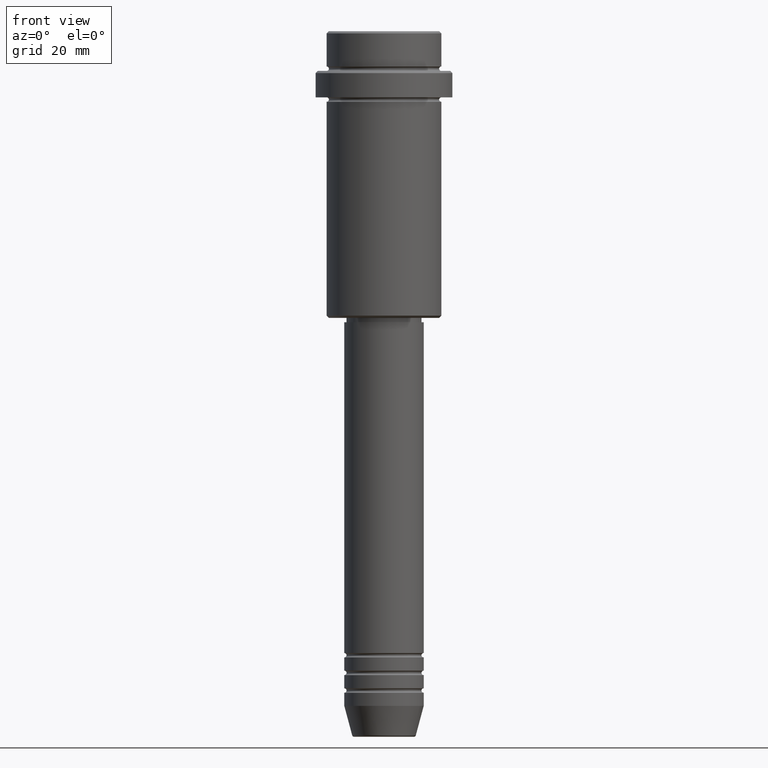
[diagram: clean part render]
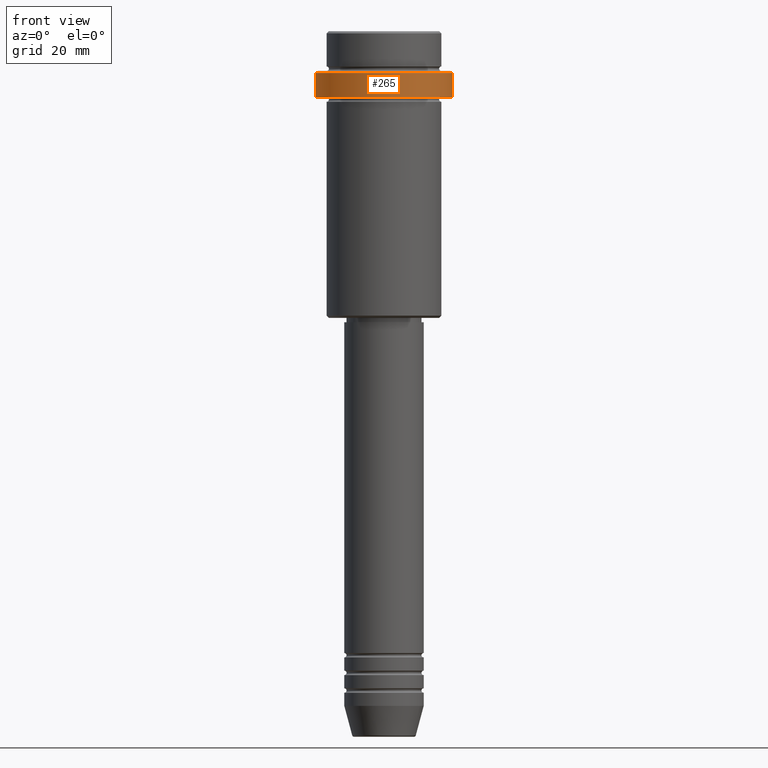
[diagram: same view with one face highlighted and labeled with its STEP entity id]
A machine part, front view. The second image highlights one B-rep face of the part: STEP entity #265.
In plain terms, the highlighted cylindrical surface (partial cylindrical patch) has radius 15.5 mm, axis along (-0, -0, 1).
Its self-contained STEP definition (entity closure, byte-faithful):
#8 = ORIENTED_EDGE ( 'NONE', *, *, #960, .T. ) ;
#87 = CIRCLE ( 'NONE', #981, 15.50000000000000000 ) ;
#154 = CIRCLE ( 'NONE', #954, 15.50000000000000000 ) ;
#160 = VERTEX_POINT ( 'NONE', #1398 ) ;
#168 = DIRECTION ( 'NONE',  ( 1.000000000000000000, 0.000000000000000000, 0.000000000000000000 ) ) ;
#202 = CARTESIAN_POINT ( 'NONE',  ( -15.50000000000000000, 1.898202538678397557E-15, 0.000000000000000000 ) ) ;
#254 = EDGE_CURVE ( 'NONE', #616, #160, #1099, .T. ) ;
#265 = ADVANCED_FACE ( 'NONE', ( #877 ), #982, .T. ) ;
#332 = ORIENTED_EDGE ( 'NONE', *, *, #608, .T. ) ;
#362 = VECTOR ( 'NONE', #1236, 1000.000000000000000 ) ;
#384 = VECTOR ( 'NONE', #426, 1000.000000000000000 ) ;
#426 = DIRECTION ( 'NONE',  ( -0.000000000000000000, -0.000000000000000000, 1.000000000000000000 ) ) ;
#441 = EDGE_CURVE ( 'NONE', #1062, #1098, #903, .T. ) ;
#520 = AXIS2_PLACEMENT_3D ( 'NONE', #559, #1297, #565 ) ;
#559 = CARTESIAN_POINT ( 'NONE',  ( 0.000000000000000000, 0.000000000000000000, 0.000000000000000000 ) ) ;
#565 = DIRECTION ( 'NONE',  ( 1.000000000000000000, 0.000000000000000000, 0.000000000000000000 ) ) ;
#608 = EDGE_CURVE ( 'NONE', #616, #1062, #154, .T. ) ;
#611 = CARTESIAN_POINT ( 'NONE',  ( 0.000000000000000000, 0.000000000000000000, -9.499999999999998224 ) ) ;
#616 = VERTEX_POINT ( 'NONE', #1046 ) ;
#620 = DIRECTION ( 'NONE',  ( 1.000000000000000000, 0.000000000000000000, 0.000000000000000000 ) ) ;
#877 = FACE_OUTER_BOUND ( 'NONE', #924, .T. ) ;
#903 = LINE ( 'NONE', #1340, #362 ) ;
#924 = EDGE_LOOP ( 'NONE', ( #1358, #332, #1356, #8 ) ) ;
#938 = DIRECTION ( 'NONE',  ( 0.000000000000000000, 0.000000000000000000, -1.000000000000000000 ) ) ;
#952 = CARTESIAN_POINT ( 'NONE',  ( 0.000000000000000000, 0.000000000000000000, -15.00000000000000000 ) ) ;
#954 = AXIS2_PLACEMENT_3D ( 'NONE', #952, #1388, #168 ) ;
#960 = EDGE_CURVE ( 'NONE', #1098, #160, #87, .T. ) ;
#969 = CARTESIAN_POINT ( 'NONE',  ( 15.50000000000000000, 0.000000000000000000, -9.499999999999998224 ) ) ;
#981 = AXIS2_PLACEMENT_3D ( 'NONE', #611, #938, #620 ) ;
#982 = CYLINDRICAL_SURFACE ( 'NONE', #520, 15.50000000000000000 ) ;
#1036 = CARTESIAN_POINT ( 'NONE',  ( 15.50000000000000000, 0.000000000000000000, -15.00000000000000000 ) ) ;
#1046 = CARTESIAN_POINT ( 'NONE',  ( -15.50000000000000000, 1.898202538678397557E-15, -15.00000000000000000 ) ) ;
#1062 = VERTEX_POINT ( 'NONE', #1036 ) ;
#1098 = VERTEX_POINT ( 'NONE', #969 ) ;
#1099 = LINE ( 'NONE', #202, #384 ) ;
#1236 = DIRECTION ( 'NONE',  ( -0.000000000000000000, -0.000000000000000000, 1.000000000000000000 ) ) ;
#1297 = DIRECTION ( 'NONE',  ( -0.000000000000000000, -0.000000000000000000, 1.000000000000000000 ) ) ;
#1340 = CARTESIAN_POINT ( 'NONE',  ( 15.50000000000000000, 0.000000000000000000, 0.000000000000000000 ) ) ;
#1356 = ORIENTED_EDGE ( 'NONE', *, *, #441, .T. ) ;
#1358 = ORIENTED_EDGE ( 'NONE', *, *, #254, .F. ) ;
#1388 = DIRECTION ( 'NONE',  ( -0.000000000000000000, -0.000000000000000000, 1.000000000000000000 ) ) ;
#1398 = CARTESIAN_POINT ( 'NONE',  ( -15.50000000000000000, 1.898202538678397557E-15, -9.499999999999998224 ) ) ;